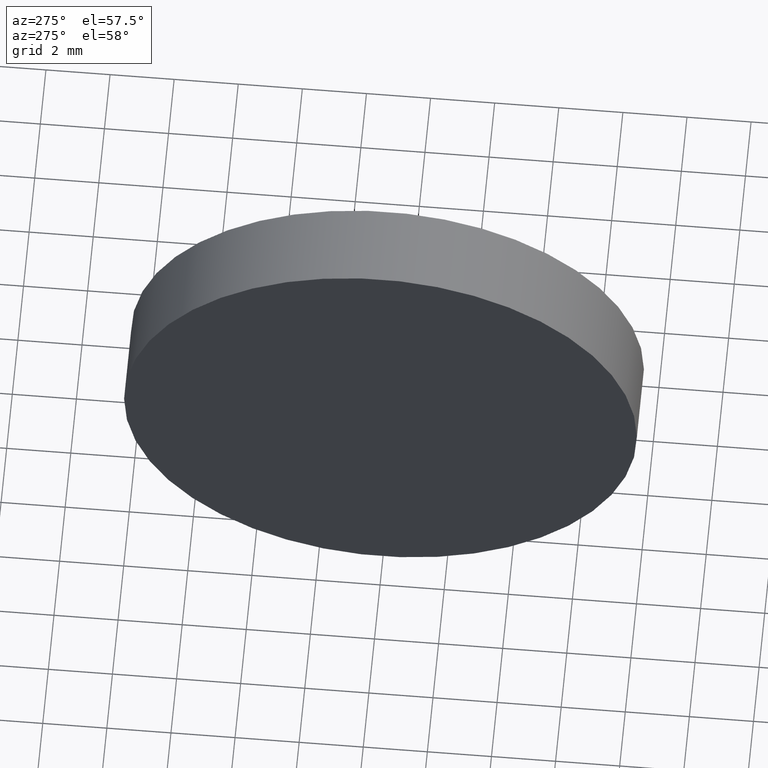
[diagram: clean part render]
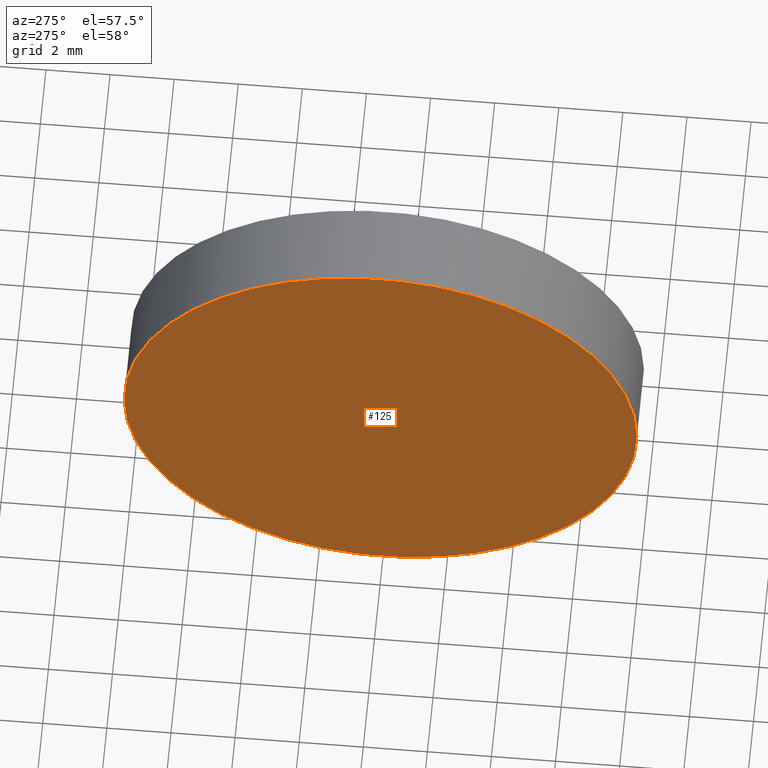
[diagram: same view with one face highlighted and labeled with its STEP entity id]
A machine part, auxiliary view. The second image highlights one B-rep face of the part: STEP entity #125.
In plain terms, the highlighted planar face has unit normal (1, -0, 0).
Its self-contained STEP definition (entity closure, byte-faithful):
#11 = CARTESIAN_POINT ( 'NONE',  ( 44.85442262622448300, 26.06225218280608400, 0.0000000000000000000 ) ) ;
#21 = VERTEX_POINT ( 'NONE', #96 ) ;
#25 = VERTEX_POINT ( 'NONE', #29 ) ;
#29 = CARTESIAN_POINT ( 'NONE',  ( 44.85442262622448300, 34.06225218280608400, 9.797174393178827600E-016 ) ) ;
#36 = CARTESIAN_POINT ( 'NONE',  ( 44.85442262622448300, 26.06225218280608400, 0.0000000000000000000 ) ) ;
#38 = ORIENTED_EDGE ( 'NONE', *, *, #146, .T. ) ;
#43 = FACE_OUTER_BOUND ( 'NONE', #135, .T. ) ;
#48 = EDGE_CURVE ( 'NONE', #25, #21, #166, .T. ) ;
#53 = AXIS2_PLACEMENT_3D ( 'NONE', #11, #90, #105 ) ;
#55 = AXIS2_PLACEMENT_3D ( 'NONE', #36, #112, #85 ) ;
#56 = DIRECTION ( 'NONE',  ( 4.058245434298766700E-016, 1.000000000000000000, 0.0000000000000000000 ) ) ;
#80 = CIRCLE ( 'NONE', #53, 8.000000000000000000 ) ;
#85 = DIRECTION ( 'NONE',  ( 0.0000000000000000000, -1.000000000000000000, 0.0000000000000000000 ) ) ;
#90 = DIRECTION ( 'NONE',  ( -1.000000000000000000, 4.058245434298766700E-016, -0.0000000000000000000 ) ) ;
#96 = CARTESIAN_POINT ( 'NONE',  ( 44.85442262622448300, 18.06225218280608400, 0.0000000000000000000 ) ) ;
#105 = DIRECTION ( 'NONE',  ( 0.0000000000000000000, -1.000000000000000000, 0.0000000000000000000 ) ) ;
#112 = DIRECTION ( 'NONE',  ( -1.000000000000000000, 4.058245434298766700E-016, -0.0000000000000000000 ) ) ;
#122 = AXIS2_PLACEMENT_3D ( 'NONE', #160, #137, #56 ) ;
#123 = ORIENTED_EDGE ( 'NONE', *, *, #48, .T. ) ;
#125 = ADVANCED_FACE ( 'NONE', ( #43 ), #161, .F. ) ;
#135 = EDGE_LOOP ( 'NONE', ( #38, #123 ) ) ;
#137 = DIRECTION ( 'NONE',  ( 1.000000000000000000, -4.058245434298766700E-016, 0.0000000000000000000 ) ) ;
#146 = EDGE_CURVE ( 'NONE', #21, #25, #80, .T. ) ;
#160 = CARTESIAN_POINT ( 'NONE',  ( 44.85442262622448300, 26.06225218280608400, 0.0000000000000000000 ) ) ;
#161 = PLANE ( 'NONE',  #122 ) ;
#166 = CIRCLE ( 'NONE', #55, 8.000000000000000000 ) ;